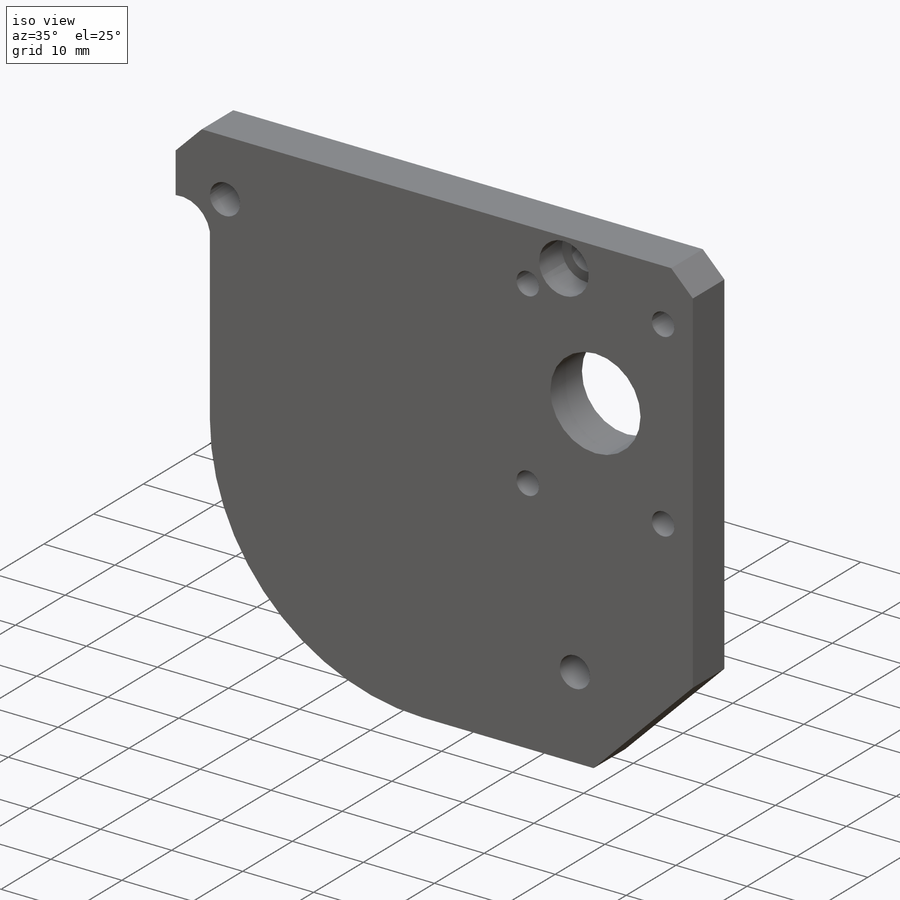
[diagram: iso view]
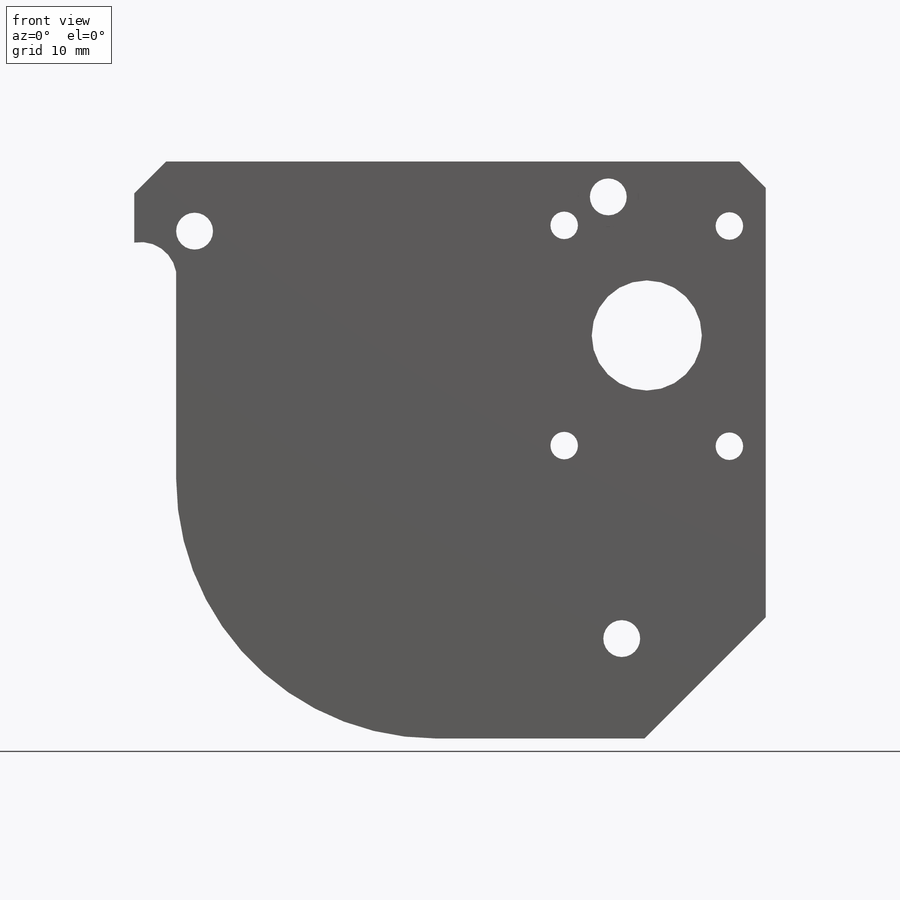
[diagram: front view]
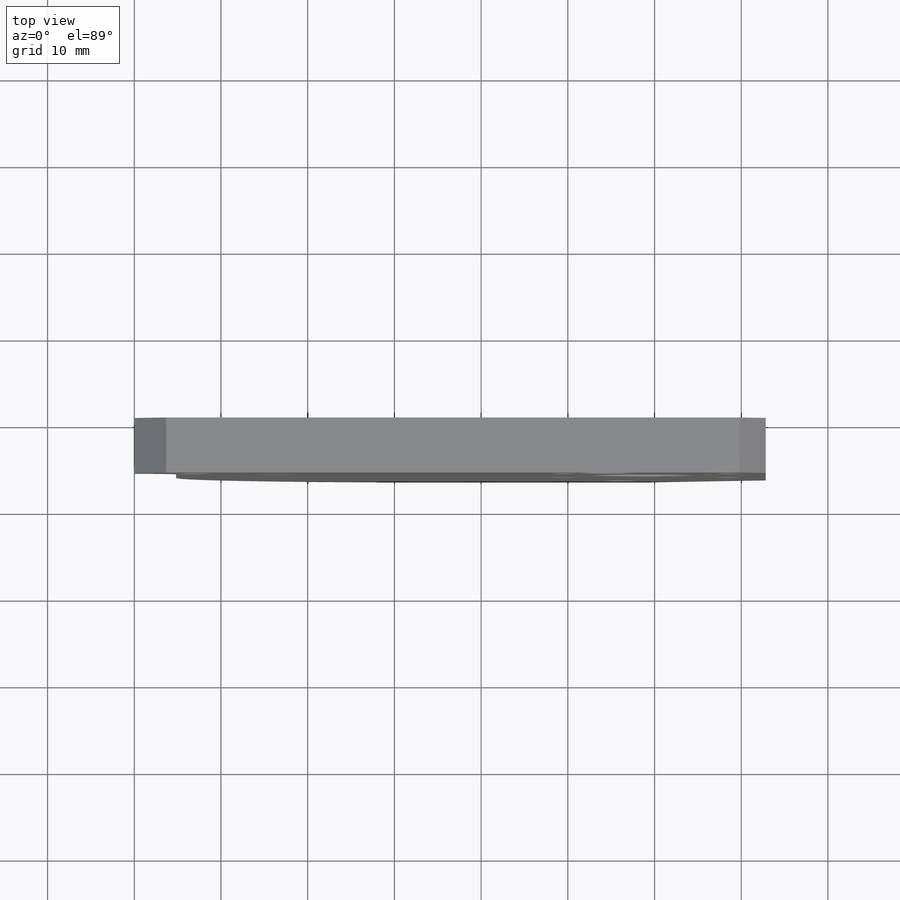
[diagram: top view]
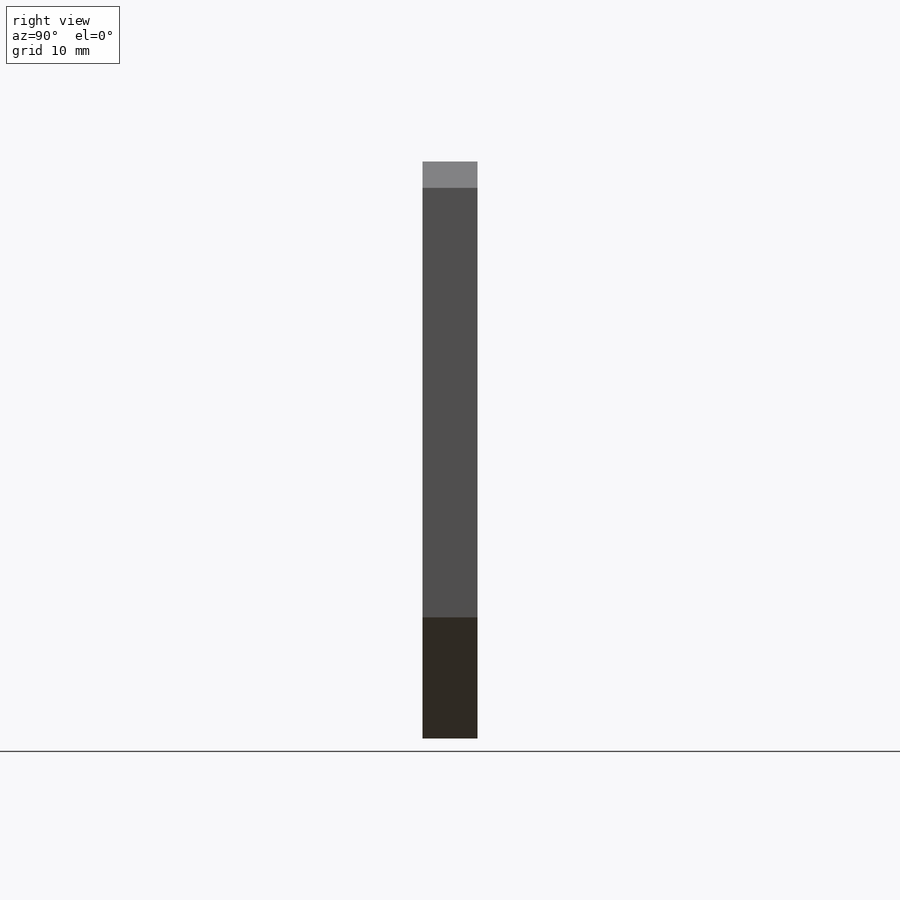
[diagram: right view]
SOLIDWORKS PART (.sldprt)
format: sldprt  version: not decoded by parser v0  size: 309,760 bytes
history: native  units: mm
features: sketch x13, cut_extrude x10, material x1, extrude x1, hole x1 (+12 scaffold rows collapsed)
feature tree (38):
  scaffold x12  (default folders/planes/origin — collapsed)
  material  "Material <not specified>"
  sketch  "Sketch1"  dims[D1=66.548mm D2=72.8218mm]
  extrude  "Boss-Extrude1"  Depth=6.35mm
  sketch  "Sketch2"  dims[D1=12.7mm D2=13.716mm D3=20.066mm]
  cut_extrude  "Cut-Extrude1"  [1 undecoded]
  sketch  "Sketch3"  dims[D1=4.2545mm D2=~11.52525mm D3=~16.60525mm]
  cut_extrude  "Cut-Extrude2"  [1 undecoded]
  sketch  "Sketch4"  dims[D1=4.2545mm D2=~6.95325mm D3=~8.03275mm]
  cut_extrude  "Cut-Extrude3"  [1 undecoded]
  sketch  "Sketch5"  dims[D1=4.2545mm D2=~4.08305mm D3=~18.15465mm]
  cut_extrude  "Cut-Extrude4"  [1 undecoded]
  sketch  "Sketch6"  dims[D1=6.985mm]
  cut_extrude  "Cut-Extrude5"  Depth=4.572mm
  hole  "1/8 (0.125) Diameter Hole1"  Diameter=3.175mm Depth=25.4mm
  sketch  "Sketch8"  dims[D1=12.7mm D2=9.525mm D3=19.05mm D4=25.4mm D5=19.05mm D6=25.4mm D7=9.525mm]
  sketch  "Sketch7"  dims[hole-wizard template sketch: 47 standard entries collapsed; hole parameters kept: c15.Hole Depth=25.4mm c15.D3=~14.816244mm c15.Drill Angle=118.0deg]
  sketch  "Sketch9"  dims[D1=13.97mm D2=135.0deg]
  cut_extrude  "Cut-Extrude6"  [1 undecoded]
  sketch  "Sketch10"  dims[D1=3.683mm D2=135.0deg]
  cut_extrude  "Cut-Extrude7"  [1 undecoded]
  sketch  "Sketch11"  dims[D1=4.826mm]
  cut_extrude  "Cut-Extrude8"  [1 undecoded]
  sketch  "Sketch12"  dims[D1=29.972mm D2=29.972mm]
  cut_extrude  "Cut-Extrude9"  [1 undecoded]
  sketch  "Sketch13"  dims[D1=3.048mm D2=45.0deg]
  cut_extrude  "Cut-Extrude10"  [1 undecoded]
decode coverage: 16 of 25 modeling features carry decoded parameters
note: ~ marks probable driven/reference dimensions
note: 9 parameter values undecoded
summary: no parameter record found for 9 features
note: suppression state not decoded; provenance and decode notes live in map.json
